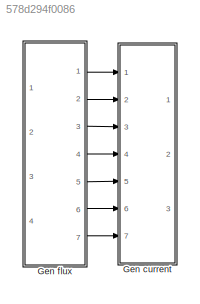
MODEL slx_578d294f0086
KIND model
CONFIG AbsTol = auto
CONFIG EnableMultiTasking = off
CONFIG FixedStep = auto
CONFIG MaxStep = auto
CONFIG MinStep = auto
CONFIG RelTol = 1e-3
CONFIG SampleTimeConstraint = Unconstrained
CONFIG Solver = VariableStepAuto
CONFIG SolverName = VariableStepAuto
CONFIG StartTime = 0.0
CONFIG StopTime = 10.0
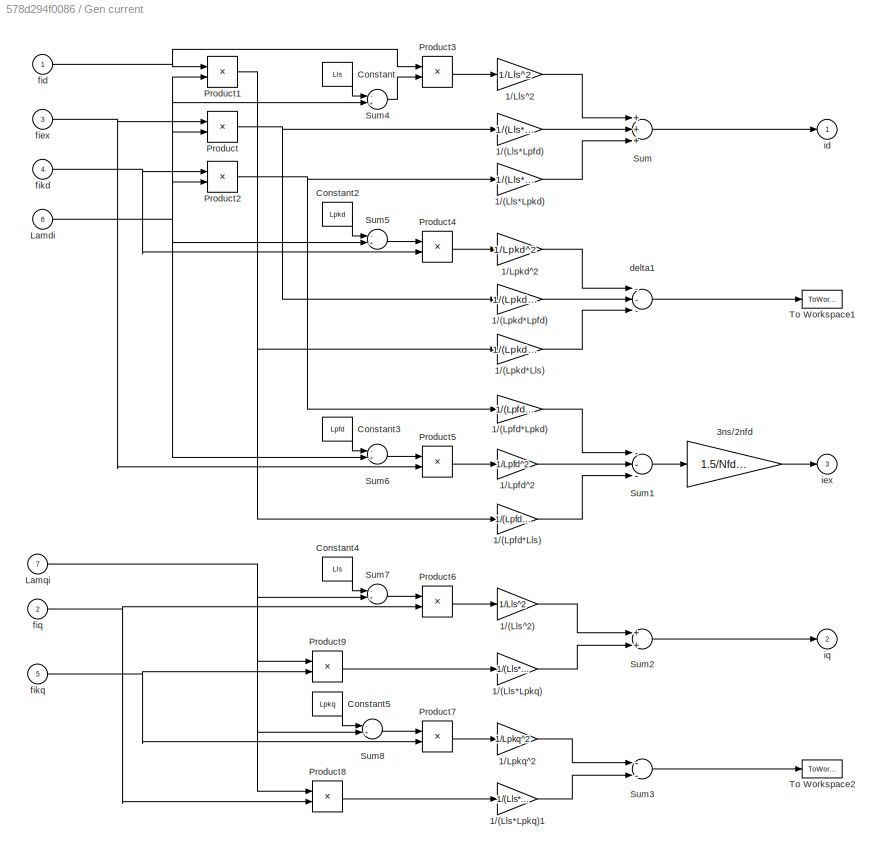
BLOCK [SubSystem] Gen current
  Ports = [7, 3]
  RequestExecContextInheritance = off
BLOCK [Gain] Gen current/1//(Lls*Lpfd)
  Gain = 1/(Lls*Lpfd)
BLOCK [Gain] Gen current/1//(Lls*Lpkd)
  Gain = 1/(Lls*Lpkd)
BLOCK [Gain] Gen current/1//(Lls*Lpkq)
  Gain = 1/(Lls*Lpkq)
BLOCK [Gain] Gen current/1//(Lls*Lpkq)1
  Gain = 1/(Lls*Lpkq)
BLOCK [Gain] Gen current/1//(Lls^2)
  Gain = 1/Lls^2
BLOCK [Gain] Gen current/1//(Lpfd*Lls)
  Gain = 1/(Lpfd*Lls)
BLOCK [Gain] Gen current/1//(Lpfd*Lpkd)
  Gain = 1/(Lpfd*Lpkd)
BLOCK [Gain] Gen current/1//(Lpkd*Lls)
  Gain = 1/(Lpkd*Lls)
BLOCK [Gain] Gen current/1//(Lpkd*Lpfd)
  Gain = 1/(Lpkd*Lpfd)
BLOCK [Gain] Gen current/1//Lls^2
  Gain = 1/Lls^2
BLOCK [Gain] Gen current/1//Lpfd^2
  Gain = 1/Lpfd^2
BLOCK [Gain] Gen current/1//Lpkd^2
  Gain = 1/Lpkd^2
BLOCK [Gain] Gen current/1//Lpkq^2
  Gain = 1/Lpkq^2
BLOCK [Gain] Gen current/3ns//2nfd
  Gain = 1.5/Nfds_gen
BLOCK [Constant] Gen current/Constant
  Value = Lls
BLOCK [Constant] Gen current/Constant2
  Value = Lpkd
BLOCK [Constant] Gen current/Constant3
  Value = Lpfd
BLOCK [Constant] Gen current/Constant4
  Value = Lls
BLOCK [Constant] Gen current/Constant5
  Value = Lpkq
BLOCK [Inport] Gen current/Lamdi
  IconDisplay = Port number
  Port = 6
BLOCK [Inport] Gen current/Lamqi
  IconDisplay = Port number
  Port = 7
BLOCK [Product] Gen current/Product
  InputSameDT = off
  OutDataTypeStr = Inherit: Inherit via internal rule
  Ports = [2, 1]
  SaturateOnIntegerOverflow = off
BLOCK [Product] Gen current/Product1
  InputSameDT = off
  OutDataTypeStr = Inherit: Inherit via internal rule
  Ports = [2, 1]
  SaturateOnIntegerOverflow = off
BLOCK [Product] Gen current/Product2
  InputSameDT = off
  OutDataTypeStr = Inherit: Inherit via internal rule
  Ports = [2, 1]
  SaturateOnIntegerOverflow = off
BLOCK [Product] Gen current/Product3
  InputSameDT = off
  OutDataTypeStr = Inherit: Inherit via internal rule
  Ports = [2, 1]
  SaturateOnIntegerOverflow = off
BLOCK [Product] Gen current/Product4
  InputSameDT = off
  OutDataTypeStr = Inherit: Inherit via internal rule
  Ports = [2, 1]
  SaturateOnIntegerOverflow = off
BLOCK [Product] Gen current/Product5
  InputSameDT = off
  OutDataTypeStr = Inherit: Inherit via internal rule
  Ports = [2, 1]
  SaturateOnIntegerOverflow = off
BLOCK [Product] Gen current/Product6
  InputSameDT = off
  OutDataTypeStr = Inherit: Inherit via internal rule
  Ports = [2, 1]
  SaturateOnIntegerOverflow = off
BLOCK [Product] Gen current/Product7
  InputSameDT = off
  OutDataTypeStr = Inherit: Inherit via internal rule
  Ports = [2, 1]
  SaturateOnIntegerOverflow = off
BLOCK [Product] Gen current/Product8
  InputSameDT = off
  OutDataTypeStr = Inherit: Inherit via internal rule
  Ports = [2, 1]
  SaturateOnIntegerOverflow = off
BLOCK [Product] Gen current/Product9
  InputSameDT = off
  OutDataTypeStr = Inherit: Inherit via internal rule
  Ports = [2, 1]
  SaturateOnIntegerOverflow = off
BLOCK [Sum] Gen current/Sum
  Inputs = +++
  Ports = [3, 1]
BLOCK [Sum] Gen current/Sum1
  Inputs = ---
  Ports = [3, 1]
BLOCK [Sum] Gen current/Sum2
  Ports = [2, 1]
BLOCK [Sum] Gen current/Sum3
  Inputs = --
  Ports = [2, 1]
BLOCK [Sum] Gen current/Sum4
  IconShape = round
  InputSameDT = off
  Inputs = -+|
  OutDataTypeStr = Inherit: Inherit via internal rule
  Ports = [2, 1]
  SaturateOnIntegerOverflow = off
BLOCK [Sum] Gen current/Sum5
  IconShape = round
  InputSameDT = off
  Inputs = -+|
  OutDataTypeStr = Inherit: Inherit via internal rule
  Ports = [2, 1]
  SaturateOnIntegerOverflow = off
BLOCK [Sum] Gen current/Sum6
  IconShape = round
  InputSameDT = off
  Inputs = -+|
  OutDataTypeStr = Inherit: Inherit via internal rule
  Ports = [2, 1]
  SaturateOnIntegerOverflow = off
BLOCK [Sum] Gen current/Sum7
  IconShape = round
  InputSameDT = off
  Inputs = -+|
  OutDataTypeStr = Inherit: Inherit via internal rule
  Ports = [2, 1]
  SaturateOnIntegerOverflow = off
BLOCK [Sum] Gen current/Sum8
  IconShape = round
  InputSameDT = off
  Inputs = -+|
  OutDataTypeStr = Inherit: Inherit via internal rule
  Ports = [2, 1]
  SaturateOnIntegerOverflow = off
BLOCK [ToWorkspace] Gen current/To Workspace1
  MaxDataPoints = inf
  Ports = [1]
  SampleTime = ts
  VariableName = ikd
BLOCK [ToWorkspace] Gen current/To Workspace2
  MaxDataPoints = inf
  Ports = [1]
  SampleTime = ts
  VariableName = ikq
BLOCK [Sum] Gen current/delta1
  Inputs = ---
  Ports = [3, 1]
BLOCK [Inport] Gen current/fid
  IconDisplay = Port number
BLOCK [Inport] Gen current/fiex
  IconDisplay = Port number
  Port = 3
BLOCK [Inport] Gen current/fikd
  IconDisplay = Port number
  Port = 4
BLOCK [Inport] Gen current/fikq
  IconDisplay = Port number
  Port = 5
BLOCK [Inport] Gen current/fiq
  IconDisplay = Port number
  Port = 2
BLOCK [Outport] Gen current/id
  IconDisplay = Port number
BLOCK [Outport] Gen current/iex
  IconDisplay = Port number
  Port = 3
BLOCK [Outport] Gen current/iq
  IconDisplay = Port number
  Port = 2
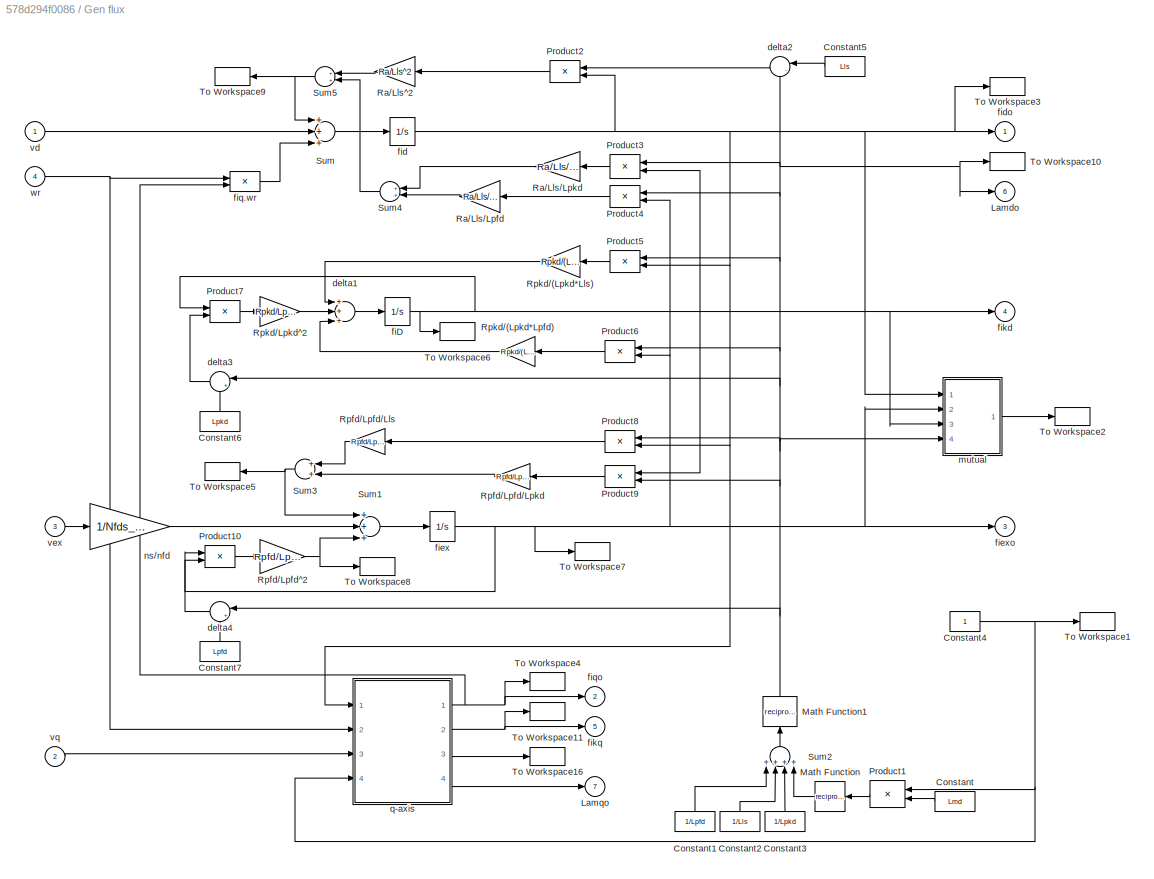
BLOCK [SubSystem] Gen flux
  Ports = [4, 7]
  RequestExecContextInheritance = off
BLOCK [Constant] Gen flux/Constant
  Value = Lmd
BLOCK [Constant] Gen flux/Constant1
  Value = 1/Lpfd
BLOCK [Constant] Gen flux/Constant2
  Value = 1/Lls
BLOCK [Constant] Gen flux/Constant3
  Value = 1/Lpkd
BLOCK [Constant] Gen flux/Constant4
BLOCK [Constant] Gen flux/Constant5
  Value = Lls
BLOCK [Constant] Gen flux/Constant6
  Value = Lpkd
BLOCK [Constant] Gen flux/Constant7
  Value = Lpfd
BLOCK [Outport] Gen flux/Lamdo
  IconDisplay = Port number
  Port = 6
BLOCK [Outport] Gen flux/Lamqo
  IconDisplay = Port number
  Port = 7
BLOCK [Math] Gen flux/Math Function
  Operator = reciprocal
  Ports = [1, 1]
BLOCK [Math] Gen flux/Math Function1
  Operator = reciprocal
  Ports = [1, 1]
BLOCK [Product] Gen flux/Product1
  InputSameDT = off
  Ports = [2, 1]
  RndMeth = Floor
BLOCK [Product] Gen flux/Product10
  InputSameDT = off
  Ports = [2, 1]
  RndMeth = Floor
BLOCK [Product] Gen flux/Product2
  InputSameDT = off
  Ports = [2, 1]
  RndMeth = Floor
BLOCK [Product] Gen flux/Product3
  InputSameDT = off
  Ports = [2, 1]
  RndMeth = Floor
BLOCK [Product] Gen flux/Product4
  InputSameDT = off
  Ports = [2, 1]
  RndMeth = Floor
BLOCK [Product] Gen flux/Product5
  InputSameDT = off
  Ports = [2, 1]
  RndMeth = Floor
BLOCK [Product] Gen flux/Product6
  InputSameDT = off
  Ports = [2, 1]
  RndMeth = Floor
BLOCK [Product] Gen flux/Product7
  InputSameDT = off
  Ports = [2, 1]
  RndMeth = Floor
BLOCK [Product] Gen flux/Product8
  InputSameDT = off
  Ports = [2, 1]
  RndMeth = Floor
BLOCK [Product] Gen flux/Product9
  InputSameDT = off
  Ports = [2, 1]
  RndMeth = Floor
BLOCK [Gain] Gen flux/Ra//Lls//Lpfd
  Gain = Ra/Lls/Lpfd
BLOCK [Gain] Gen flux/Ra//Lls//Lpkd
  Gain = Ra/Lls/Lpkd
BLOCK [Gain] Gen flux/Ra//Lls^2
  Gain = Ra/Lls^2
BLOCK [Gain] Gen flux/Rpfd//Lpfd//Lls
  Gain = Rpfd/Lpfd/Lls
BLOCK [Gain] Gen flux/Rpfd//Lpfd//Lpkd
  Gain = Rpfd/Lpfd/Lpkd
BLOCK [Gain] Gen flux/Rpfd//Lpfd^2
  Gain = Rpfd/Lpfd^2
BLOCK [Gain] Gen flux/Rpkd//(Lpkd*Lls)
  Gain = Rpkd/(Lpkd*Lls)
BLOCK [Gain] Gen flux/Rpkd//(Lpkd*Lpfd)
  Gain = Rpkd/(Lpkd*Lpfd)
BLOCK [Gain] Gen flux/Rpkd//Lpkd^2
  Gain = Rpkd/Lpkd^2
BLOCK [Sum] Gen flux/Sum
  Inputs = +++
  Ports = [3, 1]
BLOCK [Sum] Gen flux/Sum1
  Inputs = +++
  Ports = [3, 1]
BLOCK [Sum] Gen flux/Sum2
  Inputs = ++++
  Ports = [4, 1]
BLOCK [Sum] Gen flux/Sum3
  Ports = [2, 1]
BLOCK [Sum] Gen flux/Sum4
  Ports = [2, 1]
BLOCK [Sum] Gen flux/Sum5
  Ports = [2, 1]
BLOCK [ToWorkspace] Gen flux/To Workspace1
  MaxDataPoints = inf
  Ports = [1]
  SampleTime = ts
  VariableName = ksatg
BLOCK [ToWorkspace] Gen flux/To Workspace10
  MaxDataPoints = inf
  Ports = [1]
  SampleTime = ts
  VariableName = Lamds
BLOCK [ToWorkspace] Gen flux/To Workspace11
  MaxDataPoints = inf
  Ports = [1]
  SampleTime = ts
  VariableName = fikq
BLOCK [ToWorkspace] Gen flux/To Workspace16
  MaxDataPoints = inf
  Ports = [1]
  SampleTime = ts
  VariableName = fimq
BLOCK [ToWorkspace] Gen flux/To Workspace2
  MaxDataPoints = inf
  Ports = [1]
  SampleTime = ts
  VariableName = fimd
BLOCK [ToWorkspace] Gen flux/To Workspace3
  MaxDataPoints = inf
  Ports = [1]
  SampleTime = ts
  VariableName = fid
BLOCK [ToWorkspace] Gen flux/To Workspace4
  MaxDataPoints = inf
  Ports = [1]
  SampleTime = ts
  VariableName = fiq
BLOCK [ToWorkspace] Gen flux/To Workspace5
  MaxDataPoints = inf
  Ports = [1]
  SampleTime = ts
  VariableName = baemf
BLOCK [ToWorkspace] Gen flux/To Workspace6
  MaxDataPoints = inf
  Ports = [1]
  SampleTime = ts
  VariableName = fikd
BLOCK [ToWorkspace] Gen flux/To Workspace7
  MaxDataPoints = inf
  Ports = [1]
  SampleTime = ts
  VariableName = fiex
BLOCK [ToWorkspace] Gen flux/To Workspace8
  MaxDataPoints = inf
  Ports = [1]
  SampleTime = ts
  VariableName = fiex1
BLOCK [ToWorkspace] Gen flux/To Workspace9
  MaxDataPoints = inf
  Ports = [1]
  SampleTime = ts
  VariableName = raid
BLOCK [Sum] Gen flux/delta1
  Inputs = +++
  Ports = [3, 1]
BLOCK [Sum] Gen flux/delta2
  IconShape = round
  Inputs = |-+
  Ports = [2, 1]
BLOCK [Sum] Gen flux/delta3
  IconShape = round
  Inputs = |+-
  Ports = [2, 1]
BLOCK [Sum] Gen flux/delta4
  IconShape = round
  Inputs = |+-
  Ports = [2, 1]
BLOCK [Integrator] Gen flux/fiD
  Ports = [1, 1]
BLOCK [Integrator] Gen flux/fid
  Ports = [1, 1]
BLOCK [Outport] Gen flux/fido
  IconDisplay = Port number
BLOCK [Integrator] Gen flux/fiex
  Ports = [1, 1]
BLOCK [Outport] Gen flux/fiexo
  IconDisplay = Port number
  Port = 3
BLOCK [Outport] Gen flux/fikd
  IconDisplay = Port number
  Port = 4
BLOCK [Outport] Gen flux/fikq
  IconDisplay = Port number
  Port = 5
BLOCK [Product] Gen flux/fiq.wr
  Ports = [2, 1]
  RndMeth = Floor
BLOCK [Outport] Gen flux/fiqo
  IconDisplay = Port number
  Port = 2
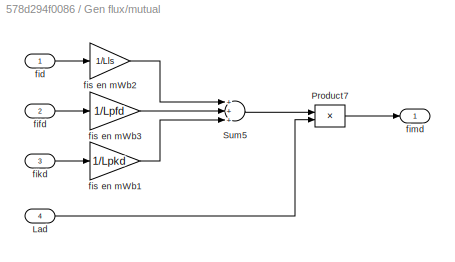
BLOCK [SubSystem] Gen flux/mutual
  Ports = [4, 1]
  RequestExecContextInheritance = off
BLOCK [Inport] Gen flux/mutual/Lad
  IconDisplay = Port number
  Port = 4
BLOCK [Product] Gen flux/mutual/Product7
  InputSameDT = off
  Ports = [2, 1]
  RndMeth = Floor
BLOCK [Sum] Gen flux/mutual/Sum5
  Inputs = +++
  Ports = [3, 1]
BLOCK [Inport] Gen flux/mutual/fid
  IconDisplay = Port number
BLOCK [Inport] Gen flux/mutual/fifd
  IconDisplay = Port number
  Port = 2
BLOCK [Inport] Gen flux/mutual/fikd
  IconDisplay = Port number
  Port = 3
BLOCK [Outport] Gen flux/mutual/fimd
  IconDisplay = Port number
BLOCK [Gain] Gen flux/mutual/fis en mWb1
  Gain = 1/Lpkd
BLOCK [Gain] Gen flux/mutual/fis en mWb2
  Gain = 1/Lls
BLOCK [Gain] Gen flux/mutual/fis en mWb3
  Gain = 1/Lpfd
BLOCK [Gain] Gen flux/ns//nfd
  Gain = 1/Nfds_gen
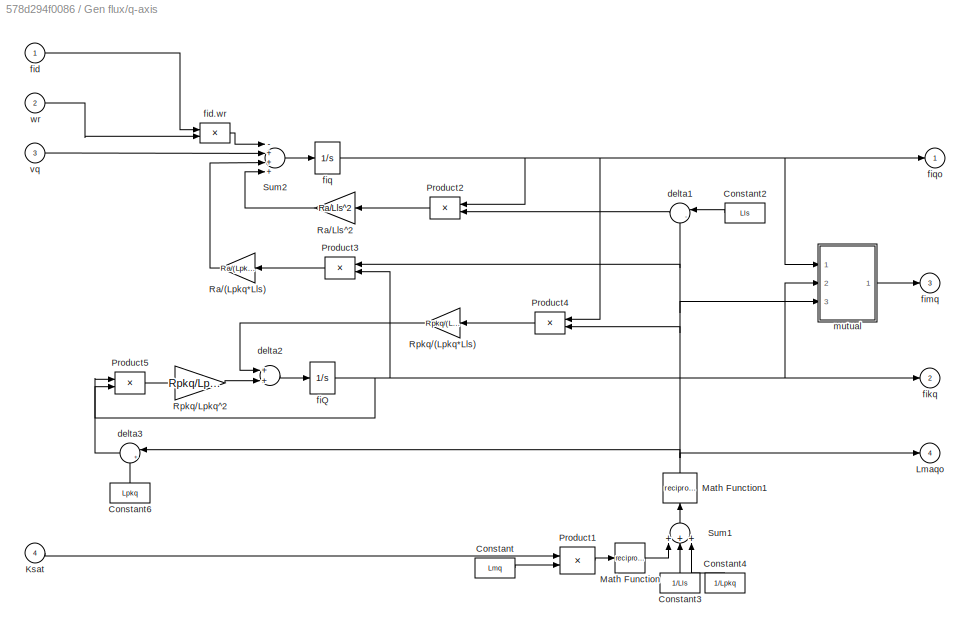
BLOCK [SubSystem] Gen flux/q-axis
  Ports = [4, 4]
  RequestExecContextInheritance = off
BLOCK [Constant] Gen flux/q-axis/Constant
  Value = Lmq
BLOCK [Constant] Gen flux/q-axis/Constant2
  Value = Lls
BLOCK [Constant] Gen flux/q-axis/Constant3
  Value = 1/Lls
BLOCK [Constant] Gen flux/q-axis/Constant4
  Value = 1/Lpkq
BLOCK [Constant] Gen flux/q-axis/Constant6
  Value = Lpkq
BLOCK [Inport] Gen flux/q-axis/Ksat
  IconDisplay = Port number
  Port = 4
BLOCK [Outport] Gen flux/q-axis/Lmaqo
  IconDisplay = Port number
  Port = 4
BLOCK [Math] Gen flux/q-axis/Math Function
  Operator = reciprocal
  Ports = [1, 1]
BLOCK [Math] Gen flux/q-axis/Math Function1
  Operator = reciprocal
  Ports = [1, 1]
BLOCK [Product] Gen flux/q-axis/Product1
  InputSameDT = off
  Ports = [2, 1]
  RndMeth = Floor
BLOCK [Product] Gen flux/q-axis/Product2
  InputSameDT = off
  Ports = [2, 1]
  RndMeth = Floor
BLOCK [Product] Gen flux/q-axis/Product3
  InputSameDT = off
  Ports = [2, 1]
  RndMeth = Floor
BLOCK [Product] Gen flux/q-axis/Product4
  InputSameDT = off
  Ports = [2, 1]
  RndMeth = Floor
BLOCK [Product] Gen flux/q-axis/Product5
  InputSameDT = off
  Ports = [2, 1]
  RndMeth = Floor
BLOCK [Gain] Gen flux/q-axis/Ra//(Lpkq*Lls)
  Gain = Ra/(Lpkq*Lls)
BLOCK [Gain] Gen flux/q-axis/Ra//Lls^2
  Gain = Ra/Lls^2
BLOCK [Gain] Gen flux/q-axis/Rpkq//(Lpkq*Lls)
  Gain = Rpkq/(Lpkq*Lls)
BLOCK [Gain] Gen flux/q-axis/Rpkq//Lpkq^2
  Gain = Rpkq/Lpkq^2
BLOCK [Sum] Gen flux/q-axis/Sum1
  Inputs = +++
  Ports = [3, 1]
BLOCK [Sum] Gen flux/q-axis/Sum2
  Inputs = -+++
  Ports = [4, 1]
BLOCK [Sum] Gen flux/q-axis/delta1
  IconShape = round
  Inputs = |-+
  Ports = [2, 1]
BLOCK [Sum] Gen flux/q-axis/delta2
  Ports = [2, 1]
BLOCK [Sum] Gen flux/q-axis/delta3
  IconShape = round
  Inputs = |+-
  Ports = [2, 1]
BLOCK [Integrator] Gen flux/q-axis/fiQ
  Ports = [1, 1]
BLOCK [Inport] Gen flux/q-axis/fid
  IconDisplay = Port number
BLOCK [Product] Gen flux/q-axis/fid.wr
  Ports = [2, 1]
  RndMeth = Floor
BLOCK [Outport] Gen flux/q-axis/fikq
  IconDisplay = Port number
  Port = 2
BLOCK [Outport] Gen flux/q-axis/fimq
  IconDisplay = Port number
  Port = 3
BLOCK [Integrator] Gen flux/q-axis/fiq
  Ports = [1, 1]
BLOCK [Outport] Gen flux/q-axis/fiqo
  IconDisplay = Port number
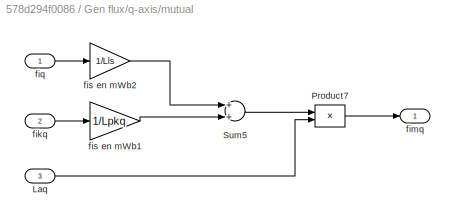
BLOCK [SubSystem] Gen flux/q-axis/mutual
  Ports = [3, 1]
  RequestExecContextInheritance = off
BLOCK [Inport] Gen flux/q-axis/mutual/Laq
  IconDisplay = Port number
  Port = 3
BLOCK [Product] Gen flux/q-axis/mutual/Product7
  InputSameDT = off
  Ports = [2, 1]
  RndMeth = Floor
BLOCK [Sum] Gen flux/q-axis/mutual/Sum5
  Ports = [2, 1]
BLOCK [Inport] Gen flux/q-axis/mutual/fikq
  IconDisplay = Port number
  Port = 2
BLOCK [Outport] Gen flux/q-axis/mutual/fimq
  IconDisplay = Port number
BLOCK [Inport] Gen flux/q-axis/mutual/fiq
  IconDisplay = Port number
BLOCK [Gain] Gen flux/q-axis/mutual/fis en mWb1
  Gain = 1/Lpkq
BLOCK [Gain] Gen flux/q-axis/mutual/fis en mWb2
  Gain = 1/Lls
BLOCK [Inport] Gen flux/q-axis/vq
  IconDisplay = Port number
  Port = 3
BLOCK [Inport] Gen flux/q-axis/wr
  IconDisplay = Port number
  Port = 2
BLOCK [Inport] Gen flux/vd
  IconDisplay = Port number
BLOCK [Inport] Gen flux/vex
  IconDisplay = Port number
  Port = 3
BLOCK [Inport] Gen flux/vq
  IconDisplay = Port number
  Port = 2
BLOCK [Inport] Gen flux/wr
  IconDisplay = Port number
  Port = 4
LINE Gen current/1//(Lls*Lpfd):1 -> Gen current/Sum:2
LINE Gen current/1//(Lls*Lpkd):1 -> Gen current/Sum:3
LINE Gen current/1//(Lls*Lpkq)1:1 -> Gen current/Sum3:2
LINE Gen current/1//(Lls*Lpkq):1 -> Gen current/Sum2:2
LINE Gen current/1//(Lls^2):1 -> Gen current/Sum2:1
LINE Gen current/1//(Lpfd*Lls):1 -> Gen current/Sum1:3
LINE Gen current/1//(Lpfd*Lpkd):1 -> Gen current/Sum1:1
LINE Gen current/1//(Lpkd*Lls):1 -> Gen current/delta1:3
LINE Gen current/1//(Lpkd*Lpfd):1 -> Gen current/delta1:2
LINE Gen current/1//Lls^2:1 -> Gen current/Sum:1
LINE Gen current/1//Lpfd^2:1 -> Gen current/Sum1:2
LINE Gen current/1//Lpkd^2:1 -> Gen current/delta1:1
LINE Gen current/1//Lpkq^2:1 -> Gen current/Sum3:1
LINE Gen current/3ns//2nfd:1 -> Gen current/iex:1
LINE Gen current/Constant2:1 -> Gen current/Sum5:1
LINE Gen current/Constant3:1 -> Gen current/Sum6:1
LINE Gen current/Constant4:1 -> Gen current/Sum7:1
LINE Gen current/Constant5:1 -> Gen current/Sum8:1
LINE Gen current/Constant:1 -> Gen current/Sum4:1
NET Gen current/Lamdi:1 -> Gen current/Product1:2, Gen current/Product2:2, Gen current/Product:2, Gen current/Sum4:2, Gen current/Sum5:2, Gen current/Sum6:2
NET Gen current/Lamqi:1 -> Gen current/Product8:1, Gen current/Product9:1, Gen current/Sum7:2, Gen current/Sum8:2
NET Gen current/Product1:1 -> Gen current/1//(Lpfd*Lls):1, Gen current/1//(Lpkd*Lls):1
NET Gen current/Product2:1 -> Gen current/1//(Lls*Lpkd):1, Gen current/1//(Lpfd*Lpkd):1
LINE Gen current/Product3:1 -> Gen current/1//Lls^2:1
LINE Gen current/Product4:1 -> Gen current/1//Lpkd^2:1
LINE Gen current/Product5:1 -> Gen current/1//Lpfd^2:1
LINE Gen current/Product6:1 -> Gen current/1//(Lls^2):1
LINE Gen current/Product7:1 -> Gen current/1//Lpkq^2:1
LINE Gen current/Product8:1 -> Gen current/1//(Lls*Lpkq)1:1
LINE Gen current/Product9:1 -> Gen current/1//(Lls*Lpkq):1
NET Gen current/Product:1 -> Gen current/1//(Lls*Lpfd):1, Gen current/1//(Lpkd*Lpfd):1
LINE Gen current/Sum1:1 -> Gen current/3ns//2nfd:1
LINE Gen current/Sum2:1 -> Gen current/iq:1
LINE Gen current/Sum3:1 -> Gen current/To Workspace2:1
LINE Gen current/Sum4:1 -> Gen current/Product3:2
LINE Gen current/Sum5:1 -> Gen current/Product4:1
LINE Gen current/Sum6:1 -> Gen current/Product5:1
LINE Gen current/Sum7:1 -> Gen current/Product6:1
LINE Gen current/Sum8:1 -> Gen current/Product7:1
LINE Gen current/Sum:1 -> Gen current/id:1
LINE Gen current/delta1:1 -> Gen current/To Workspace1:1
NET Gen current/fid:1 -> Gen current/Product1:1, Gen current/Product3:1
NET Gen current/fiex:1 -> Gen current/Product5:2, Gen current/Product:1
NET Gen current/fikd:1 -> Gen current/Product2:1, Gen current/Product4:2
NET Gen current/fikq:1 -> Gen current/Product7:2, Gen current/Product9:2
NET Gen current/fiq:1 -> Gen current/Product6:2, Gen current/Product8:2
LINE Gen flux/Constant1:1 -> Gen flux/Sum2:1
LINE Gen flux/Constant2:1 -> Gen flux/Sum2:2
LINE Gen flux/Constant3:1 -> Gen flux/Sum2:3
NET Gen flux/Constant4:1 -> Gen flux/Product1:1, Gen flux/To Workspace1:1, Gen flux/q-axis:4
LINE Gen flux/Constant5:1 -> Gen flux/delta2:1
LINE Gen flux/Constant6:1 -> Gen flux/delta3:2
LINE Gen flux/Constant7:1 -> Gen flux/delta4:2
LINE Gen flux/Constant:1 -> Gen flux/Product1:2
NET Gen flux/Math Function1:1 -> Gen flux/Lamdo:1, Gen flux/Product3:1, Gen flux/Product4:1, Gen flux/Product5:1, Gen flux/Product6:1, Gen flux/Product8:1, Gen flux/Product9:2, Gen flux/To Workspace10:1, Gen flux/delta2:2, Gen flux/delta3:1, Gen flux/delta4:1, Gen flux/mutual:4
LINE Gen flux/Math Function:1 -> Gen flux/Sum2:4
LINE Gen flux/Product10:1 -> Gen flux/Rpfd//Lpfd^2:1
LINE Gen flux/Product1:1 -> Gen flux/Math Function:1
LINE Gen flux/Product2:1 -> Gen flux/Ra//Lls^2:1
LINE Gen flux/Product3:1 -> Gen flux/Ra//Lls//Lpkd:1
LINE Gen flux/Product4:1 -> Gen flux/Ra//Lls//Lpfd:1
LINE Gen flux/Product5:1 -> Gen flux/Rpkd//(Lpkd*Lls):1
LINE Gen flux/Product6:1 -> Gen flux/Rpkd//(Lpkd*Lpfd):1
LINE Gen flux/Product7:1 -> Gen flux/Rpkd//Lpkd^2:1
LINE Gen flux/Product8:1 -> Gen flux/Rpfd//Lpfd//Lls:1
LINE Gen flux/Product9:1 -> Gen flux/Rpfd//Lpfd//Lpkd:1
LINE Gen flux/Ra//Lls//Lpfd:1 -> Gen flux/Sum4:2
LINE Gen flux/Ra//Lls//Lpkd:1 -> Gen flux/Sum4:1
LINE Gen flux/Ra//Lls^2:1 -> Gen flux/Sum5:1
LINE Gen flux/Rpfd//Lpfd//Lls:1 -> Gen flux/Sum3:1
LINE Gen flux/Rpfd//Lpfd//Lpkd:1 -> Gen flux/Sum3:2
NET Gen flux/Rpfd//Lpfd^2:1 -> Gen flux/Sum1:3, Gen flux/To Workspace8:1
LINE Gen flux/Rpkd//(Lpkd*Lls):1 -> Gen flux/delta1:1
LINE Gen flux/Rpkd//(Lpkd*Lpfd):1 -> Gen flux/delta1:3
LINE Gen flux/Rpkd//Lpkd^2:1 -> Gen flux/delta1:2
LINE Gen flux/Sum1:1 -> Gen flux/fiex:1
LINE Gen flux/Sum2:1 -> Gen flux/Math Function1:1
NET Gen flux/Sum3:1 -> Gen flux/Sum1:1, Gen flux/To Workspace5:1
LINE Gen flux/Sum4:1 -> Gen flux/Sum5:2
NET Gen flux/Sum5:1 -> Gen flux/Sum:1, Gen flux/To Workspace9:1
LINE Gen flux/Sum:1 -> Gen flux/fid:1
LINE Gen flux/delta1:1 -> Gen flux/fiD:1
LINE Gen flux/delta2:1 -> Gen flux/Product2:1
LINE Gen flux/delta3:1 -> Gen flux/Product7:2
LINE Gen flux/delta4:1 -> Gen flux/Product10:1
NET Gen flux/fiD:1 -> Gen flux/Product3:2, Gen flux/Product7:1, Gen flux/Product9:1, Gen flux/To Workspace6:1, Gen flux/fikd:1, Gen flux/mutual:3
NET Gen flux/fid:1 -> Gen flux/Product2:2, Gen flux/Product5:2, Gen flux/Product8:2, Gen flux/To Workspace3:1, Gen flux/fido:1, Gen flux/mutual:1, Gen flux/q-axis:1
NET Gen flux/fiex:1 -> Gen flux/Product10:2, Gen flux/Product4:2, Gen flux/Product6:2, Gen flux/To Workspace7:1, Gen flux/fiexo:1, Gen flux/mutual:2
LINE Gen flux/fiq.wr:1 -> Gen flux/Sum:3
LINE Gen flux/mutual/Lad:1 -> Gen flux/mutual/Product7:2
LINE Gen flux/mutual/Product7:1 -> Gen flux/mutual/fimd:1
LINE Gen flux/mutual/Sum5:1 -> Gen flux/mutual/Product7:1
LINE Gen flux/mutual/fid:1 -> Gen flux/mutual/fis en mWb2:1
LINE Gen flux/mutual/fifd:1 -> Gen flux/mutual/fis en mWb3:1
LINE Gen flux/mutual/fikd:1 -> Gen flux/mutual/fis en mWb1:1
LINE Gen flux/mutual/fis en mWb1:1 -> Gen flux/mutual/Sum5:3
LINE Gen flux/mutual/fis en mWb2:1 -> Gen flux/mutual/Sum5:1
LINE Gen flux/mutual/fis en mWb3:1 -> Gen flux/mutual/Sum5:2
LINE Gen flux/mutual:1 -> Gen flux/To Workspace2:1
LINE Gen flux/ns//nfd:1 -> Gen flux/Sum1:2
LINE Gen flux/q-axis/Constant2:1 -> Gen flux/q-axis/delta1:1
LINE Gen flux/q-axis/Constant3:1 -> Gen flux/q-axis/Sum1:2
LINE Gen flux/q-axis/Constant4:1 -> Gen flux/q-axis/Sum1:3
LINE Gen flux/q-axis/Constant6:1 -> Gen flux/q-axis/delta3:2
LINE Gen flux/q-axis/Constant:1 -> Gen flux/q-axis/Product1:2
LINE Gen flux/q-axis/Ksat:1 -> Gen flux/q-axis/Product1:1
NET Gen flux/q-axis/Math Function1:1 -> Gen flux/q-axis/Lmaqo:1, Gen flux/q-axis/Product3:1, Gen flux/q-axis/Product4:2, Gen flux/q-axis/delta1:2, Gen flux/q-axis/delta3:1, Gen flux/q-axis/mutual:3
LINE Gen flux/q-axis/Math Function:1 -> Gen flux/q-axis/Sum1:1
LINE Gen flux/q-axis/Product1:1 -> Gen flux/q-axis/Math Function:1
LINE Gen flux/q-axis/Product2:1 -> Gen flux/q-axis/Ra//Lls^2:1
LINE Gen flux/q-axis/Product3:1 -> Gen flux/q-axis/Ra//(Lpkq*Lls):1
LINE Gen flux/q-axis/Product4:1 -> Gen flux/q-axis/Rpkq//(Lpkq*Lls):1
LINE Gen flux/q-axis/Product5:1 -> Gen flux/q-axis/Rpkq//Lpkq^2:1
LINE Gen flux/q-axis/Ra//(Lpkq*Lls):1 -> Gen flux/q-axis/Sum2:3
LINE Gen flux/q-axis/Ra//Lls^2:1 -> Gen flux/q-axis/Sum2:4
LINE Gen flux/q-axis/Rpkq//(Lpkq*Lls):1 -> Gen flux/q-axis/delta2:1
LINE Gen flux/q-axis/Rpkq//Lpkq^2:1 -> Gen flux/q-axis/delta2:2
LINE Gen flux/q-axis/Sum1:1 -> Gen flux/q-axis/Math Function1:1
LINE Gen flux/q-axis/Sum2:1 -> Gen flux/q-axis/fiq:1
LINE Gen flux/q-axis/delta1:1 -> Gen flux/q-axis/Product2:2
LINE Gen flux/q-axis/delta2:1 -> Gen flux/q-axis/fiQ:1
LINE Gen flux/q-axis/delta3:1 -> Gen flux/q-axis/Product5:1
NET Gen flux/q-axis/fiQ:1 -> Gen flux/q-axis/Product3:2, Gen flux/q-axis/Product5:2, Gen flux/q-axis/fikq:1, Gen flux/q-axis/mutual:2
LINE Gen flux/q-axis/fid.wr:1 -> Gen flux/q-axis/Sum2:1
LINE Gen flux/q-axis/fid:1 -> Gen flux/q-axis/fid.wr:1
NET Gen flux/q-axis/fiq:1 -> Gen flux/q-axis/Product2:1, Gen flux/q-axis/Product4:1, Gen flux/q-axis/fiqo:1, Gen flux/q-axis/mutual:1
LINE Gen flux/q-axis/mutual/Laq:1 -> Gen flux/q-axis/mutual/Product7:2
LINE Gen flux/q-axis/mutual/Product7:1 -> Gen flux/q-axis/mutual/fimq:1
LINE Gen flux/q-axis/mutual/Sum5:1 -> Gen flux/q-axis/mutual/Product7:1
LINE Gen flux/q-axis/mutual/fikq:1 -> Gen flux/q-axis/mutual/fis en mWb1:1
LINE Gen flux/q-axis/mutual/fiq:1 -> Gen flux/q-axis/mutual/fis en mWb2:1
LINE Gen flux/q-axis/mutual/fis en mWb1:1 -> Gen flux/q-axis/mutual/Sum5:2
LINE Gen flux/q-axis/mutual/fis en mWb2:1 -> Gen flux/q-axis/mutual/Sum5:1
LINE Gen flux/q-axis/mutual:1 -> Gen flux/q-axis/fimq:1
LINE Gen flux/q-axis/vq:1 -> Gen flux/q-axis/Sum2:2
LINE Gen flux/q-axis/wr:1 -> Gen flux/q-axis/fid.wr:2
NET Gen flux/q-axis:1 -> Gen flux/To Workspace4:1, Gen flux/fiq.wr:2, Gen flux/fiqo:1
NET Gen flux/q-axis:2 -> Gen flux/To Workspace11:1, Gen flux/fikq:1
LINE Gen flux/q-axis:3 -> Gen flux/To Workspace16:1
LINE Gen flux/q-axis:4 -> Gen flux/Lamqo:1
LINE Gen flux/vd:1 -> Gen flux/Sum:2
LINE Gen flux/vex:1 -> Gen flux/ns//nfd:1
LINE Gen flux/vq:1 -> Gen flux/q-axis:3
NET Gen flux/wr:1 -> Gen flux/fiq.wr:1, Gen flux/q-axis:2
LINE Gen flux:1 -> Gen current:1
LINE Gen flux:2 -> Gen current:2
LINE Gen flux:3 -> Gen current:3
LINE Gen flux:4 -> Gen current:4
LINE Gen flux:5 -> Gen current:5
LINE Gen flux:6 -> Gen current:6
LINE Gen flux:7 -> Gen current:7
note: NET lines group one-source signal fan-out (src -> all destinations, sorted); 1:1 wires keep LINE
